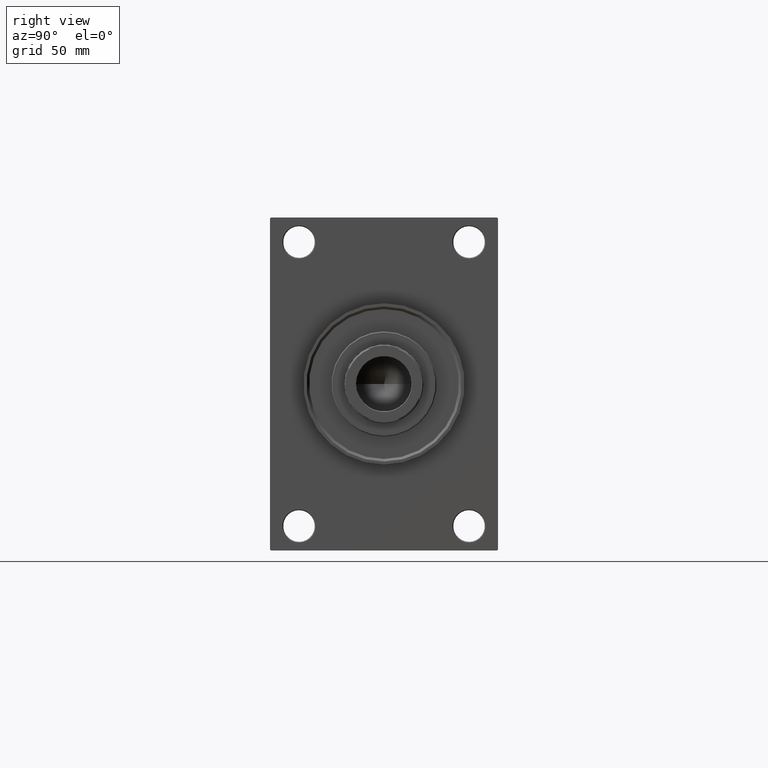
[diagram: clean part render]
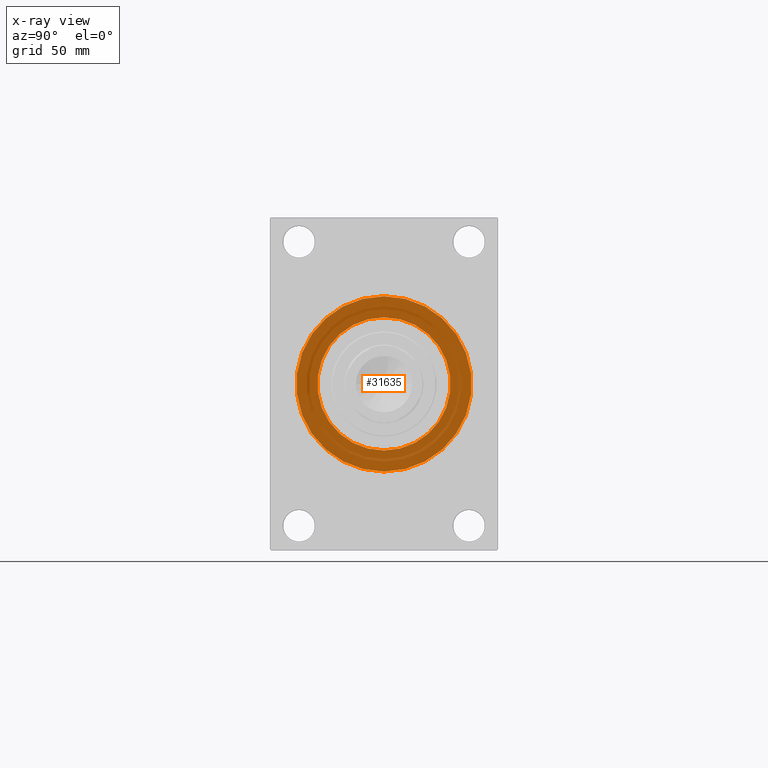
[diagram: x-ray — body ghosted, one internal face saturated and labeled with its STEP entity id]
A machine part, right view, then the same camera in x-ray: the body is ghosted and one INTERNAL B-rep face — a face not visible from any outside direction — is saturated and labeled: STEP entity #31635.
In plain terms, the highlighted planar face has unit normal (-1, 0, 0).
Its self-contained STEP definition (entity closure, byte-faithful):
#771 = CARTESIAN_POINT ( 'NONE',  ( 220.9999999999999716, -2.602085213965210642E-15, 0.000000000000000000 ) ) ;
#1976 = AXIS2_PLACEMENT_3D ( 'NONE', #771, #26695, #42182 ) ;
#4147 = AXIS2_PLACEMENT_3D ( 'NONE', #28699, #34343, #43451 ) ;
#4219 = EDGE_LOOP ( 'NONE', ( #32389, #28823 ) ) ;
#7576 = CARTESIAN_POINT ( 'NONE',  ( 220.9999999999999716, -2.602085213965210642E-15, 0.000000000000000000 ) ) ;
#8768 = VERTEX_POINT ( 'NONE', #31958 ) ;
#8909 = FACE_BOUND ( 'NONE', #15690, .T. ) ;
#9001 = CIRCLE ( 'NONE', #33005, 50.00000000000000000 ) ;
#10362 = DIRECTION ( 'NONE',  ( -1.000000000000000000, 0.000000000000000000, -0.000000000000000000 ) ) ;
#13991 = CARTESIAN_POINT ( 'NONE',  ( 220.9999999999999432, 0.000000000000000000, 0.000000000000000000 ) ) ;
#15690 = EDGE_LOOP ( 'NONE', ( #15990, #45303 ) ) ;
#15990 = ORIENTED_EDGE ( 'NONE', *, *, #42686, .F. ) ;
#16025 = AXIS2_PLACEMENT_3D ( 'NONE', #13991, #10362, #25170 ) ;
#16325 = CARTESIAN_POINT ( 'NONE',  ( 220.9999999999999432, 0.000000000000000000, 0.000000000000000000 ) ) ;
#17076 = EDGE_CURVE ( 'NONE', #26803, #33334, #46214, .T. ) ;
#19601 = FACE_OUTER_BOUND ( 'NONE', #4219, .T. ) ;
#21900 = CARTESIAN_POINT ( 'NONE',  ( 220.9999999999999716, -2.602085213965210642E-15, 50.00000000000000000 ) ) ;
#22377 = DIRECTION ( 'NONE',  ( 1.000000000000000000, 0.000000000000000000, 0.000000000000000000 ) ) ;
#22547 = VERTEX_POINT ( 'NONE', #21900 ) ;
#24085 = DIRECTION ( 'NONE',  ( -1.000000000000000000, 0.000000000000000000, -0.000000000000000000 ) ) ;
#25170 = DIRECTION ( 'NONE',  ( 0.000000000000000000, 0.000000000000000000, 1.000000000000000000 ) ) ;
#25350 = CIRCLE ( 'NONE', #16025, 38.00000000000000000 ) ;
#26245 = DIRECTION ( 'NONE',  ( 0.000000000000000000, 0.000000000000000000, -1.000000000000000000 ) ) ;
#26695 = DIRECTION ( 'NONE',  ( 1.000000000000000000, 0.000000000000000000, 0.000000000000000000 ) ) ;
#26803 = VERTEX_POINT ( 'NONE', #44050 ) ;
#28699 = CARTESIAN_POINT ( 'NONE',  ( 220.9999999999999716, 0.000000000000000000, 0.000000000000000000 ) ) ;
#28823 = ORIENTED_EDGE ( 'NONE', *, *, #38311, .F. ) ;
#31635 = ADVANCED_FACE ( 'NONE', ( #8909, #19601 ), #45477, .T. ) ;
#31958 = CARTESIAN_POINT ( 'NONE',  ( 220.9999999999999716, 3.521148781771555838E-15, -50.00000000000000000 ) ) ;
#32389 = ORIENTED_EDGE ( 'NONE', *, *, #36061, .F. ) ;
#33005 = AXIS2_PLACEMENT_3D ( 'NONE', #7576, #22377, #26245 ) ;
#33334 = VERTEX_POINT ( 'NONE', #41325 ) ;
#34343 = DIRECTION ( 'NONE',  ( -1.000000000000000000, 0.000000000000000000, -0.000000000000000000 ) ) ;
#36061 = EDGE_CURVE ( 'NONE', #22547, #8768, #46822, .T. ) ;
#38311 = EDGE_CURVE ( 'NONE', #8768, #22547, #9001, .T. ) ;
#38833 = DIRECTION ( 'NONE',  ( 0.000000000000000000, 0.000000000000000000, 1.000000000000000000 ) ) ;
#41325 = CARTESIAN_POINT ( 'NONE',  ( 220.9999999999999432, 0.000000000000000000, -38.00000000000000000 ) ) ;
#42182 = DIRECTION ( 'NONE',  ( 0.000000000000000000, 0.000000000000000000, -1.000000000000000000 ) ) ;
#42686 = EDGE_CURVE ( 'NONE', #33334, #26803, #25350, .T. ) ;
#43451 = DIRECTION ( 'NONE',  ( -0.000000000000000000, 0.000000000000000000, 1.000000000000000000 ) ) ;
#44050 = CARTESIAN_POINT ( 'NONE',  ( 220.9999999999999432, 4.653657836759941941E-15, 38.00000000000000000 ) ) ;
#45303 = ORIENTED_EDGE ( 'NONE', *, *, #17076, .F. ) ;
#45459 = AXIS2_PLACEMENT_3D ( 'NONE', #16325, #24085, #38833 ) ;
#45477 = PLANE ( 'NONE',  #4147 ) ;
#46214 = CIRCLE ( 'NONE', #45459, 38.00000000000000000 ) ;
#46822 = CIRCLE ( 'NONE', #1976, 50.00000000000000000 ) ;